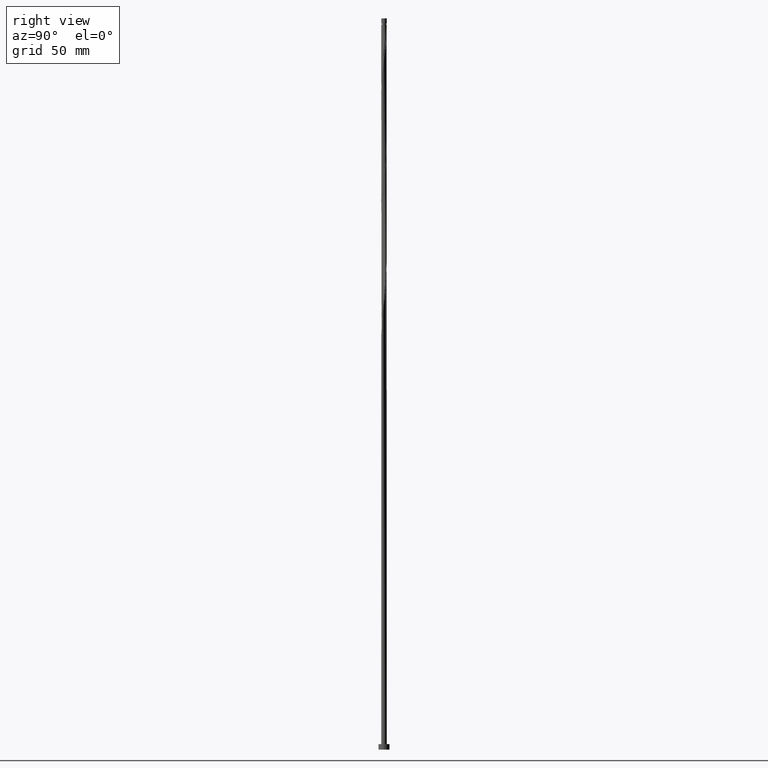
[diagram: clean part render]
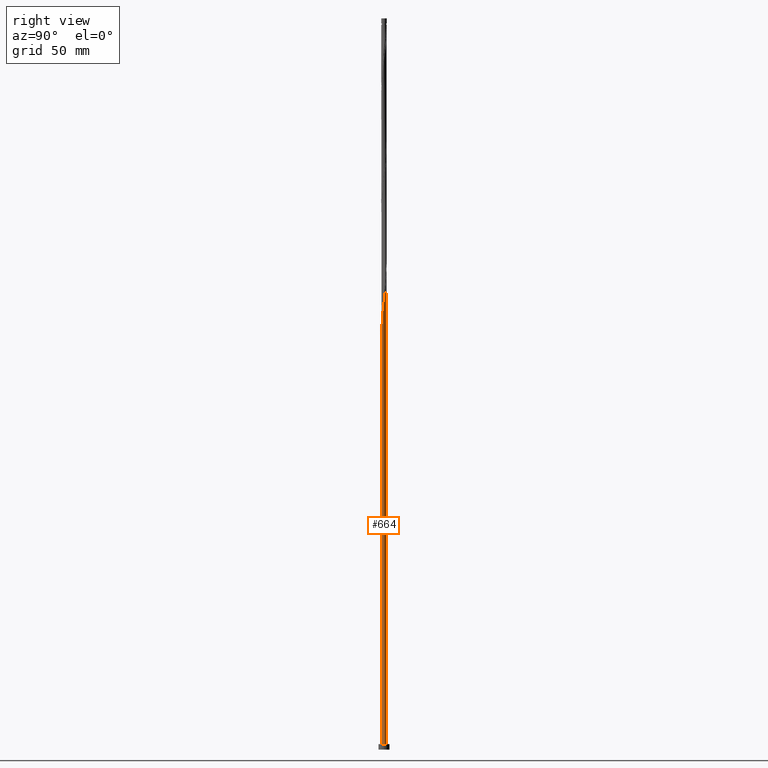
[diagram: same view with one face highlighted and labeled with its STEP entity id]
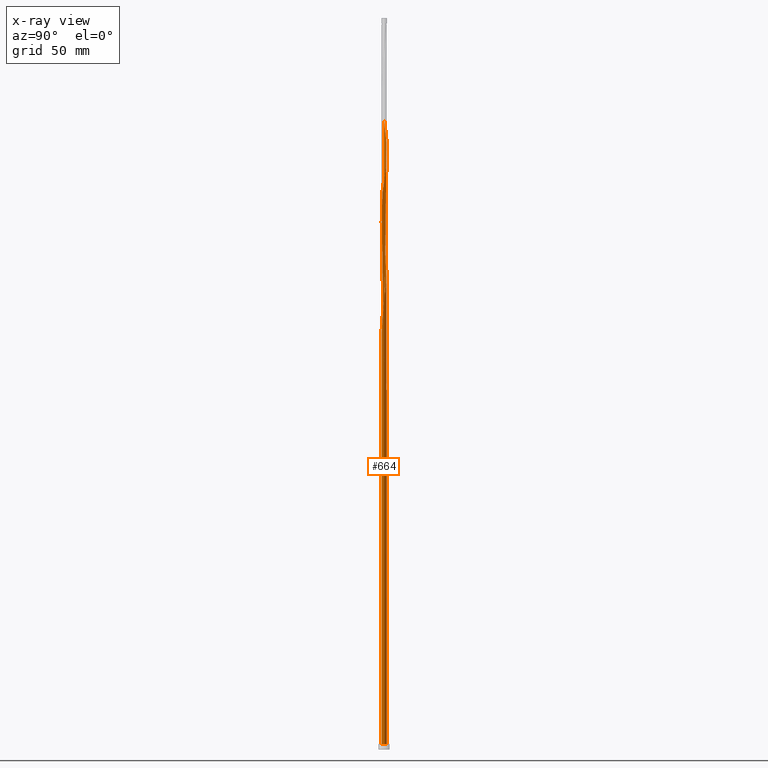
[diagram: x-ray of the same camera — body ghosted, the highlighted face saturated]
A machine part, right view. The second image highlights one B-rep face of the part: STEP entity #664.
The next image is the same camera in x-ray: the body ghosted, the highlighted face saturated — about 0% of this face is hidden behind the body in this view.
In plain terms, the highlighted cylindrical surface (bore or boss wall) has radius 1.5 mm, axis along (-0, -0, -1).
Its self-contained STEP definition (entity closure, byte-faithful):
#6 = VERTEX_POINT ( 'NONE', #1360 ) ;
#11 = CARTESIAN_POINT ( 'NONE',  ( -0.8705927413954919203, 1.221502467713221352, 201.0035197228416735 ) ) ;
#18 = CARTESIAN_POINT ( 'NONE',  ( -1.472387068173886648, 0.3270043533098237476, 342.1146308339528446 ) ) ;
#19 = CARTESIAN_POINT ( 'NONE',  ( -0.5976035578119458513, 1.375816116961315450, 198.7812975006194449 ) ) ;
#21 = CARTESIAN_POINT ( 'NONE',  ( -1.500000000000000444, 1.569583619169727147E-16, 215.3511851885854753 ) ) ;
#34 = CARTESIAN_POINT ( 'NONE',  ( -0.4791193468187435189, 1.430139915222718106, 202.1146308339528730 ) ) ;
#57 = CARTESIAN_POINT ( 'NONE',  ( -1.383394496761527925, 0.6008953252765254494, 211.0035197228417303 ) ) ;
#62 = CARTESIAN_POINT ( 'NONE',  ( -0.9989778241396267688, 1.129999483400999871, 268.7812975006195302 ) ) ;
#69 = CARTESIAN_POINT ( 'NONE',  ( -1.019387611201352239, -1.111622428587364375, 286.5590752783974153 ) ) ;
#70 = CARTESIAN_POINT ( 'NONE',  ( -1.493148538522774738, 0.1432041965422218843, 214.3368530561750731 ) ) ;
#74 = CARTESIAN_POINT ( 'NONE',  ( 1.430745833859950356, 0.4505178785491225080, 247.6701863895083875 ) ) ;
#85 = VERTEX_POINT ( 'NONE', #1034 ) ;
#93 = CARTESIAN_POINT ( 'NONE',  ( -1.490293487130534444, 0.1703681960235504111, 276.5590752783971880 ) ) ;
#125 = CARTESIAN_POINT ( 'NONE',  ( -0.3252129892473624717, -1.464321177756028103, 225.4479641672861590 ) ) ;
#142 = CARTESIAN_POINT ( 'NONE',  ( -1.490293487130534444, 0.1703681960235504111, 343.2257419450638736 ) ) ;
#162 = EDGE_CURVE ( 'NONE', #1152, #1869, #622, .T. ) ;
#165 = DIRECTION ( 'NONE',  ( -2.054325274013053632E-29, -4.625929269271493369E-14, -1.000000000000000000 ) ) ;
#174 = CARTESIAN_POINT ( 'NONE',  ( 0.000000000000000000, 0.000000000000000000, 3.000000000000000000 ) ) ;
#179 = CARTESIAN_POINT ( 'NONE',  ( -1.500000000000000222, 0.000000000000000000, 400.0000000000000000 ) ) ;
#184 = CARTESIAN_POINT ( 'NONE',  ( -1.305812670777220630, -0.7381417674387960037, 216.5590752783972732 ) ) ;
#188 = CARTESIAN_POINT ( 'NONE',  ( -0.01365681319226729265, 1.499937829196074990, 198.7812975006195586 ) ) ;
#192 = DIRECTION ( 'NONE',  ( -0.000000000000000000, -0.000000000000000000, -1.000000000000000000 ) ) ;
#199 = CARTESIAN_POINT ( 'NONE',  ( -1.228230844792911558, -0.8753882096010663361, 284.3368530561750163 ) ) ;
#200 = CARTESIAN_POINT ( 'NONE',  ( -1.123809227997129678, 0.9935053190942143564, 207.6701863895084443 ) ) ;
#204 = CARTESIAN_POINT ( 'NONE',  ( 0.2984962311319893646, -1.470000000000002416, 229.8924086117306445 ) ) ;
#213 = CARTESIAN_POINT ( 'NONE',  ( -0.4791193468187449067, -1.430139915222720326, 291.0035197228416450 ) ) ;
#214 = CARTESIAN_POINT ( 'NONE',  ( -0.1713066316759796204, 1.498502440289335436, 199.8924086117306445 ) ) ;
#217 = CARTESIAN_POINT ( 'NONE',  ( -0.7659922474358256128, -1.299273413288166035, 222.1146308339528446 ) ) ;
#226 = CARTESIAN_POINT ( 'NONE',  ( -1.105532844612588494, 1.013803299206905262, 269.8924086117305023 ) ) ;
#233 = CARTESIAN_POINT ( 'NONE',  ( 0.4791193468187449067, 1.430139915222720326, 257.6701863895083875 ) ) ;
#239 = CARTESIAN_POINT ( 'NONE',  ( 1.019387611201352906, 1.111622428587364153, 319.8924086117306160 ) ) ;
#244 = EDGE_CURVE ( 'NONE', #1657, #6, #940, .T. ) ;
#249 = CARTESIAN_POINT ( 'NONE',  ( -0.2984962311319891981, 1.470000000000002416, 329.8924086117306160 ) ) ;
#265 = CARTESIAN_POINT ( 'NONE',  ( -0.5976035578119458513, 1.375816116961315450, 332.1146308339528446 ) ) ;
#269 = CARTESIAN_POINT ( 'NONE',  ( -0.4791193468187449067, -1.430139915222720326, 224.3368530561750731 ) ) ;
#274 = ORIENTED_EDGE ( 'NONE', *, *, #774, .F. ) ;
#296 = CARTESIAN_POINT ( 'NONE',  ( -1.472387068173886648, 0.3270043533098237476, 208.7812975006195302 ) ) ;
#311 = DIRECTION ( 'NONE',  ( 0.000000000000000000, 0.000000000000000000, 1.000000000000000000 ) ) ;
#337 = CARTESIAN_POINT ( 'NONE',  ( 0.7659922474358266120, 1.299273413288165813, 322.1146308339529014 ) ) ;
#349 = CARTESIAN_POINT ( 'NONE',  ( 1.472387068173885982, -0.3270043533098247468, 308.7812975006194165 ) ) ;
#353 = CARTESIAN_POINT ( 'NONE',  ( 1.472387068173885982, -0.3270043533098247468, 242.1146308339528161 ) ) ;
#359 = VECTOR ( 'NONE', #1533, 1000.000000000000000 ) ;
#362 = CARTESIAN_POINT ( 'NONE',  ( -0.7659922474358256128, -1.299273413288166035, 288.7812975006195302 ) ) ;
#366 = CARTESIAN_POINT ( 'NONE',  ( -0.1439930052914436820, 1.501373218102816764, 262.1146308339527877 ) ) ;
#372 = CARTESIAN_POINT ( 'NONE',  ( 1.212087865085549776, -0.8976071150128118736, 304.3368530561750731 ) ) ;
#375 = CARTESIAN_POINT ( 'NONE',  ( -1.019387611201352239, -1.111622428587364375, 219.8924086117306729 ) ) ;
#381 = CARTESIAN_POINT ( 'NONE',  ( 1.493148538522776958, 0.1432041965422204133, 312.1146308339527877 ) ) ;
#422 = CARTESIAN_POINT ( 'NONE',  ( 0.01365681319226837859, 1.499937829196076766, 327.6701863895085012 ) ) ;
#444 = CARTESIAN_POINT ( 'NONE',  ( -1.500000000000002220, -4.559266703302508033E-16, 344.4336320348758136 ) ) ;
#449 = CARTESIAN_POINT ( 'NONE',  ( -1.500000000000002665, 5.157203320129068548E-16, 211.1002987015424424 ) ) ;
#456 = CARTESIAN_POINT ( 'NONE',  ( -1.500000000000001998, -0.07176599893013092812, 211.6088472271065086 ) ) ;
#465 = CARTESIAN_POINT ( 'NONE',  ( -1.292155857584952550, 0.7617960617572806514, 205.4479641672861305 ) ) ;
#476 = CARTESIAN_POINT ( 'NONE',  ( -0.01365681319226816695, -1.499937829196076766, 294.3368530561750731 ) ) ;
#477 = CARTESIAN_POINT ( 'NONE',  ( 0.2984962311319896422, 1.469999999999999529, 196.5590752783972732 ) ) ;
#487 = CARTESIAN_POINT ( 'NONE',  ( 0.9989778241396266578, -1.129999483401000093, 302.1146308339529014 ) ) ;
#502 = CARTESIAN_POINT ( 'NONE',  ( 1.490293487130534444, -0.1703681960235505499, 243.2257419450639020 ) ) ;
#508 = CARTESIAN_POINT ( 'NONE',  ( 1.508199906087182685, -0.01373203873727797675, 311.0035197228417019 ) ) ;
#512 = CARTESIAN_POINT ( 'NONE',  ( 0.4529994569725335207, -1.438626781897188067, 231.0035197228417019 ) ) ;
#520 = CARTESIAN_POINT ( 'NONE',  ( 1.383394496761530146, 0.6008953252765250053, 315.4479641672861021 ) ) ;
#521 = ORIENTED_EDGE ( 'NONE', *, *, #893, .F. ) ;
#538 = CIRCLE ( 'NONE', #1619, 1.500000000000000222 ) ;
#549 = CARTESIAN_POINT ( 'NONE',  ( -0.7422076586513572938, 1.313005452025443720, 266.5590752783973016 ) ) ;
#558 = CARTESIAN_POINT ( 'NONE',  ( -1.372223850084356211, 0.6259850085017497623, 339.8924086117307297 ) ) ;
#561 = CARTESIAN_POINT ( 'NONE',  ( 1.478097170958371676, 0.3001404318217202327, 246.5590752783972732 ) ) ;
#590 = CARTESIAN_POINT ( 'NONE',  ( -1.105532844612588494, 1.013803299206905262, 203.2257419450639304 ) ) ;
#600 = CARTESIAN_POINT ( 'NONE',  ( -1.500000000000000666, 0.07176599893012375331, 214.8426366630214375 ) ) ;
#605 = CARTESIAN_POINT ( 'NONE',  ( -0.7422076586513572938, 1.313005452025443720, 199.8924086117306160 ) ) ;
#622 =( BOUNDED_CURVE ( )  B_SPLINE_CURVE ( 2, ( #1465, #727, #19, #605, #11, #1041, #590, #879, #465, #899, #758, #296, #1626, #1192, #867 ),
 .UNSPECIFIED., .F., .T. ) 
 B_SPLINE_CURVE_WITH_KNOTS ( ( 3, 2, 2, 2, 2, 2, 2, 3 ),
 ( 0.000000000000000000, 0.008333333333333303727, 0.01666666666666671848, 0.02500000000000002220, 0.03333333333333332593, 0.04166666666666662966, 0.05000000000000004441, 0.05452860127731171125 ),
 .UNSPECIFIED. ) 
 CURVE ( )  GEOMETRIC_REPRESENTATION_ITEM ( )  RATIONAL_B_SPLINE_CURVE ( ( 0.9090909090910140877, 0.9041108139712620284, 0.9090909090910140877, 0.9041108139712620284, 0.9090909090910140877, 0.9041108139712620284, 0.9090909090910140877, 0.9041108139712620284, 0.9090909090910140877, 0.9041108139712620284, 0.9090909090910140877, 0.9041108139712620284, 0.9090909090910140877, 0.9063845652765609717, 0.9066196499553023092 ) ) 
 REPRESENTATION_ITEM ( '' )  );
#624 = CARTESIAN_POINT ( 'NONE',  ( -1.019387611201350907, 1.111622428587362821, 206.5590752783972732 ) ) ;
#628 = CARTESIAN_POINT ( 'NONE',  ( 0.000000000000000000, 0.000000000000000000, 400.0000000000000000 ) ) ;
#638 = CARTESIAN_POINT ( 'NONE',  ( -0.2984962311319891981, 1.470000000000002416, 196.5590752783972732 ) ) ;
#642 = CARTESIAN_POINT ( 'NONE',  ( -1.292155857584952550, 0.7617960617572806514, 272.1146308339527877 ) ) ;
#649 = CARTESIAN_POINT ( 'NONE',  ( 1.500000000000000222, 0.000000000000000000, 3.000000000000000000 ) ) ;
#650 = CARTESIAN_POINT ( 'NONE',  ( -0.3252129892473624717, -1.464321177756028103, 292.1146308339527309 ) ) ;
#655 = CARTESIAN_POINT ( 'NONE',  ( -1.123809227997131899, -0.9935053190942150225, 218.7812975006195018 ) ) ;
#660 = CARTESIAN_POINT ( 'NONE',  ( -1.493148538522776958, -0.1432041965422212737, 278.7812975006194733 ) ) ;
#664 = ADVANCED_FACE ( 'NONE', ( #1073 ), #1181, .T. ) ;
#673 = CARTESIAN_POINT ( 'NONE',  ( 1.123809227997132343, 0.9935053190942143564, 252.1146308339528446 ) ) ;
#698 = EDGE_CURVE ( 'NONE', #6, #1657, #538, .T. ) ;
#727 = CARTESIAN_POINT ( 'NONE',  ( -0.4529994569725342424, 1.438626781897187623, 197.6701863895083875 ) ) ;
#756 = DIRECTION ( 'NONE',  ( 1.000000000000000000, 0.000000000000000000, 0.000000000000000000 ) ) ;
#758 = CARTESIAN_POINT ( 'NONE',  ( -1.422305459129121541, 0.4764946809057868382, 207.6701863895083875 ) ) ;
#763 = CARTESIAN_POINT ( 'NONE',  ( -1.228230844792911558, -0.8753882096010663361, 217.6701863895084443 ) ) ;
#774 = EDGE_CURVE ( 'NONE', #1869, #872, #1464, .T. ) ;
#780 = CARTESIAN_POINT ( 'NONE',  ( -1.123809227997131899, -0.9935053190942150225, 285.4479641672860453 ) ) ;
#786 = CARTESIAN_POINT ( 'NONE',  ( 1.105532844612588050, -1.013803299206905262, 236.5590752783972448 ) ) ;
#797 = CARTESIAN_POINT ( 'NONE',  ( 0.7422076586513570717, -1.313005452025443720, 233.2257419450640157 ) ) ;
#808 = CARTESIAN_POINT ( 'NONE',  ( -1.422305459129121541, 0.4764946809057868382, 274.3368530561750731 ) ) ;
#817 = CARTESIAN_POINT ( 'NONE',  ( 0.1713066316759805641, 1.498502440289337212, 259.8924086117305592 ) ) ;
#867 = CARTESIAN_POINT ( 'NONE',  ( -1.500000000000002665, 5.157203320129068548E-16, 211.1002987015424424 ) ) ;
#872 = VERTEX_POINT ( 'NONE', #444 ) ;
#879 = CARTESIAN_POINT ( 'NONE',  ( -1.212087865085549998, 0.8976071150128117626, 204.3368530561750163 ) ) ;
#886 = CARTESIAN_POINT ( 'NONE',  ( -1.500000000000002887, 0.08546060616964404333, 343.8280407254912348 ) ) ;
#888 = CARTESIAN_POINT ( 'NONE',  ( 0.000000000000000000, 0.000000000000000000, 196.5590752783973301 ) ) ;
#893 = EDGE_CURVE ( 'NONE', #872, #1142, #901, .T. ) ;
#899 = CARTESIAN_POINT ( 'NONE',  ( -1.372223850084356211, 0.6259850085017497623, 206.5590752783972732 ) ) ;
#901 = LINE ( 'NONE', #1488, #1035 ) ;
#924 = CARTESIAN_POINT ( 'NONE',  ( -1.305812670777220630, -0.7381417674387960037, 283.2257419450639873 ) ) ;
#926 = ORIENTED_EDGE ( 'NONE', *, *, #1141, .F. ) ;
#929 = CARTESIAN_POINT ( 'NONE',  ( 0.01365681319226837859, 1.499937829196076766, 261.0035197228417587 ) ) ;
#937 = CARTESIAN_POINT ( 'NONE',  ( -1.305812670777218187, 0.7381417674387954486, 209.8924086117306160 ) ) ;
#940 = CIRCLE ( 'NONE', #970, 1.500000000000000222 ) ;
#941 = CARTESIAN_POINT ( 'NONE',  ( 1.493148538522776958, 0.1432041965422204133, 245.4479641672861874 ) ) ;
#951 = CARTESIAN_POINT ( 'NONE',  ( 0.5976035578119451852, -1.375816116961315450, 232.1146308339528446 ) ) ;
#956 = CARTESIAN_POINT ( 'NONE',  ( 1.422305459129121541, -0.4764946809057872268, 307.6701863895083875 ) ) ;
#959 = CARTESIAN_POINT ( 'NONE',  ( -0.01365681319226816695, -1.499937829196076766, 227.6701863895084159 ) ) ;
#965 = CARTESIAN_POINT ( 'NONE',  ( -1.478097170958371676, -0.3001404318217203993, 279.8924086117306160 ) ) ;
#970 = AXIS2_PLACEMENT_3D ( 'NONE', #1598, #311, #1316 ) ;
#991 = CARTESIAN_POINT ( 'NONE',  ( -1.292155857584952550, 0.7617960617572806514, 338.7812975006195302 ) ) ;
#1023 = DIRECTION ( 'NONE',  ( -0.000000000000000000, -0.000000000000000000, -1.000000000000000000 ) ) ;
#1031 = CARTESIAN_POINT ( 'NONE',  ( -1.422305459129121541, 0.4764946809057868382, 341.0035197228415882 ) ) ;
#1034 = CARTESIAN_POINT ( 'NONE',  ( 0.2984962311319896422, 1.469999999999999529, 196.5590752783972732 ) ) ;
#1035 = VECTOR ( 'NONE', #1023, 1000.000000000000000 ) ;
#1041 = CARTESIAN_POINT ( 'NONE',  ( -0.9989778241396267688, 1.129999483400999871, 202.1146308339528446 ) ) ;
#1052 = CARTESIAN_POINT ( 'NONE',  ( -1.383394496761529924, -0.6008953252765258934, 215.4479641672861874 ) ) ;
#1066 = CARTESIAN_POINT ( 'NONE',  ( 0.2984962311319893646, -1.470000000000002416, 296.5590752783971880 ) ) ;
#1068 = CARTESIAN_POINT ( 'NONE',  ( -1.500000000000000444, 1.569583619169727147E-16, 215.3511851885854753 ) ) ;
#1073 = FACE_OUTER_BOUND ( 'NONE', #1094, .T. ) ;
#1080 = CARTESIAN_POINT ( 'NONE',  ( 1.105532844612588050, -1.013803299206905262, 303.2257419450639304 ) ) ;
#1085 = CARTESIAN_POINT ( 'NONE',  ( 1.508199906087182685, -0.01373203873727797675, 244.3368530561750731 ) ) ;
#1091 = CARTESIAN_POINT ( 'NONE',  ( -0.8926899293185894813, -1.205447920937764650, 287.6701863895083875 ) ) ;
#1094 = EDGE_LOOP ( 'NONE', ( #521, #274, #1212, #1510, #1604, #1749, #1729, #1822, #926 ) ) ;
#1096 = CARTESIAN_POINT ( 'NONE',  ( 1.019387611201352906, 1.111622428587364153, 253.2257419450639873 ) ) ;
#1106 = CARTESIAN_POINT ( 'NONE',  ( 0.8705927413954913652, -1.221502467713221796, 234.3368530561750731 ) ) ;
#1112 = CARTESIAN_POINT ( 'NONE',  ( 1.305812670777220630, 0.7381417674387958927, 316.5590752783972448 ) ) ;
#1120 = EDGE_CURVE ( 'NONE', #1152, #85, #1455, .T. ) ;
#1135 = CARTESIAN_POINT ( 'NONE',  ( -0.7422076586513572938, 1.313005452025443720, 333.2257419450639873 ) ) ;
#1137 = CARTESIAN_POINT ( 'NONE',  ( 1.292155857584952550, -0.7617960617572808735, 238.7812975006194733 ) ) ;
#1141 = EDGE_CURVE ( 'NONE', #1142, #85, #1674, .T. ) ;
#1142 = VERTEX_POINT ( 'NONE', #1068 ) ;
#1148 = CARTESIAN_POINT ( 'NONE',  ( 0.8926899293185895923, 1.205447920937764428, 254.3368530561751015 ) ) ;
#1152 = VERTEX_POINT ( 'NONE', #638 ) ;
#1157 = CARTESIAN_POINT ( 'NONE',  ( 0.3252129892473633599, 1.464321177756027881, 325.4479641672861590 ) ) ;
#1181 = CYLINDRICAL_SURFACE ( 'NONE', #1247, 1.500000000000000222 ) ;
#1192 = CARTESIAN_POINT ( 'NONE',  ( -1.500000000000002887, 0.08546060616964247514, 210.4947073921579204 ) ) ;
#1197 = DIRECTION ( 'NONE',  ( -1.000000000000000000, 0.000000000000000000, 0.000000000000000000 ) ) ;
#1201 = CARTESIAN_POINT ( 'NONE',  ( -1.430745833859948357, 0.4505178785491231741, 212.1146308339529014 ) ) ;
#1210 = CARTESIAN_POINT ( 'NONE',  ( 0.1439930052914445702, -1.501373218102816764, 295.4479641672862726 ) ) ;
#1211 = CARTESIAN_POINT ( 'NONE',  ( 0.1439930052914449587, 1.501373218102814544, 197.6701863895083875 ) ) ;
#1212 = ORIENTED_EDGE ( 'NONE', *, *, #1434, .T. ) ;
#1225 = CARTESIAN_POINT ( 'NONE',  ( -1.372223850084356211, 0.6259850085017497623, 273.2257419450639304 ) ) ;
#1232 = CARTESIAN_POINT ( 'NONE',  ( -0.8926899293185874829, 1.205447920937763984, 205.4479641672862158 ) ) ;
#1236 = CARTESIAN_POINT ( 'NONE',  ( 1.422305459129121541, -0.4764946809057872268, 241.0035197228417587 ) ) ;
#1242 = CARTESIAN_POINT ( 'NONE',  ( -1.430745833859950356, -0.4505178785491230076, 281.0035197228417587 ) ) ;
#1247 = AXIS2_PLACEMENT_3D ( 'NONE', #628, #192, #1197 ) ;
#1248 = CARTESIAN_POINT ( 'NONE',  ( 1.372223850084355767, -0.6259850085017499843, 239.8924086117306160 ) ) ;
#1254 = CARTESIAN_POINT ( 'NONE',  ( 1.430745833859950356, 0.4505178785491225080, 314.3368530561751300 ) ) ;
#1257 = CARTESIAN_POINT ( 'NONE',  ( 0.1439930052914445702, -1.501373218102816764, 228.7812975006195302 ) ) ;
#1263 = CARTESIAN_POINT ( 'NONE',  ( -1.212087865085549998, 0.8976071150128117626, 337.6701863895083875 ) ) ;
#1272 = CARTESIAN_POINT ( 'NONE',  ( -0.4529994569725342424, 1.438626781897187623, 331.0035197228418156 ) ) ;
#1293 = CARTESIAN_POINT ( 'NONE',  ( 0.1713066316759805641, 1.498502440289337212, 326.5590752783972448 ) ) ;
#1295 = CARTESIAN_POINT ( 'NONE',  ( 1.212087865085549776, -0.8976071150128118736, 237.6701863895083875 ) ) ;
#1303 = CARTESIAN_POINT ( 'NONE',  ( 0.4791193468187449067, 1.430139915222720326, 324.3368530561751300 ) ) ;
#1316 = DIRECTION ( 'NONE',  ( 1.000000000000000000, 0.000000000000000000, 0.000000000000000000 ) ) ;
#1334 = DIRECTION ( 'NONE',  ( 0.000000000000000000, 1.000000000000000000, -5.551115123125782071E-14 ) ) ;
#1346 = CARTESIAN_POINT ( 'NONE',  ( -1.478097170958371676, -0.3001404318217203993, 213.2257419450639588 ) ) ;
#1359 = CARTESIAN_POINT ( 'NONE',  ( -0.3252129892473613615, 1.464321177756026549, 201.0035197228417303 ) ) ;
#1360 = CARTESIAN_POINT ( 'NONE',  ( -1.500000000000000222, 0.000000000000000000, 3.000000000000000000 ) ) ;
#1368 = AXIS2_PLACEMENT_3D ( 'NONE', #888, #165, #1334 ) ;
#1376 = CARTESIAN_POINT ( 'NONE',  ( 1.305812670777220630, 0.7381417674387958927, 249.8924086117305876 ) ) ;
#1383 = CARTESIAN_POINT ( 'NONE',  ( 0.5976035578119451852, -1.375816116961315450, 298.7812975006194165 ) ) ;
#1384 = CARTESIAN_POINT ( 'NONE',  ( -0.6225557971272838165, 1.364706664255441515, 203.2257419450639873 ) ) ;
#1387 = CARTESIAN_POINT ( 'NONE',  ( 0.9989778241396266578, -1.129999483401000093, 235.4479641672861305 ) ) ;
#1397 = CARTESIAN_POINT ( 'NONE',  ( -0.8705927413954919203, 1.221502467713221352, 267.6701863895083875 ) ) ;
#1406 = CARTESIAN_POINT ( 'NONE',  ( -0.2984962311319891981, 1.470000000000002416, 263.2257419450639873 ) ) ;
#1433 = CARTESIAN_POINT ( 'NONE',  ( -0.1439930052914436820, 1.501373218102816764, 328.7812975006195302 ) ) ;
#1434 = EDGE_CURVE ( 'NONE', #1869, #6, #1644, .T. ) ;
#1455 = CIRCLE ( 'NONE', #1368, 1.500000000000000222 ) ;
#1464 =( BOUNDED_CURVE ( )  B_SPLINE_CURVE ( 2, ( #449, #456, #1630, #1346, #1782, #1052, #184, #763, #655, #375, #1824, #217, #1735, #269, #125, #1525, #959, #1257, #204, #512, #951, #797, #1106, #1387, #786, #1295, #1137, #1248, #1236, #353, #502, #1085, #941, #561, #74, #1672, #1376, #1725, #673, #1096, #1148, #1547, #1876, #233, #1683, #817, #929, #366, #1406, #1513, #1536, #549, #1397, #62, #226, #1834, #642, #1225, #808, #1693, #93, #1865, #660, #965, #1242, #1690, #924, #199, #780, #69, #1091, #362, #1795, #213, #650, #1508, #476, #1210, #1066, #1806, #1383, #1819, #1840, #487, #1080, #372, #1830, #1667, #956, #349, #1531, #508, #381, #1543, #1254, #520, #1112, #1700, #1552, #239, #1654, #337, #1560, #1303, #1157, #1293, #422, #1433, #249, #1272, #265, #1135, #1873, #1847, #1855, #1263, #991, #558, #1031, #18, #142, #886, #1753 ),
 .UNSPECIFIED., .F., .T. ) 
 B_SPLINE_CURVE_WITH_KNOTS ( ( 3, 2, 2, 2, 2, 2, 2, 2, 2, 2, 2, 2, 2, 2, 2, 2, 2, 2, 2, 2, 2, 2, 2, 2, 2, 2, 2, 2, 2, 2, 2, 2, 2, 2, 2, 2, 2, 2, 2, 2, 2, 2, 2, 2, 2, 2, 2, 2, 2, 2, 2, 2, 2, 2, 2, 2, 2, 2, 2, 2, 2, 3 ),
 ( 0.05452860127731171125, 0.05833333333333334814, 0.06666666666666665186, 0.07499999999999995559, 0.08333333333333337034, 0.09166666666666667407, 0.09999999999999997780, 0.1083333333333332815, 0.1166666666666666963, 0.1250000000000000000, 0.1333333333333333037, 0.1416666666666667185, 0.1500000000000000222, 0.1583333333333333259, 0.1666666666666666297, 0.1750000000000000444, 0.1833333333333333481, 0.1916666666666666519, 0.1999999999999999556, 0.2083333333333333703, 0.2166666666666666741, 0.2249999999999999778, 0.2333333333333332815, 0.2416666666666666963, 0.2500000000000000000, 0.2583333333333333037, 0.2666666666666667185, 0.2750000000000000222, 0.2833333333333333259, 0.2916666666666666297, 0.3000000000000000444, 0.3083333333333333481, 0.3166666666666666519, 0.3249999999999999556, 0.3333333333333333703, 0.3416666666666666741, 0.3499999999999999778, 0.3583333333333332815, 0.3666666666666666963, 0.3750000000000000000, 0.3833333333333333037, 0.3916666666666667185, 0.4000000000000000222, 0.4083333333333333259, 0.4166666666666666297, 0.4250000000000000444, 0.4333333333333333481, 0.4416666666666666519, 0.4499999999999999556, 0.4583333333333333703, 0.4666666666666666741, 0.4749999999999999778, 0.4833333333333332815, 0.4916666666666666963, 0.5000000000000000000, 0.5083333333333333037, 0.5166666666666666075, 0.5250000000000000222, 0.5333333333333333259, 0.5416666666666667407, 0.5500000000000000444, 0.5545286012773116280 ),
 .UNSPECIFIED. ) 
 CURVE ( )  GEOMETRIC_REPRESENTATION_ITEM ( )  RATIONAL_B_SPLINE_CURVE ( ( 0.9066196499553023092, 0.9068171577857151444, 0.9090909090910140877, 0.9041108139712620284, 0.9090909090910140877, 0.9041108139712620284, 0.9090909090910140877, 0.9041108139712620284, 0.9090909090910140877, 0.9041108139712620284, 0.9090909090910140877, 0.9041108139712620284, 0.9090909090910140877, 0.9041108139712620284, 0.9090909090910140877, 0.9041108139712620284, 0.9090909090910140877, 0.9041108139712620284, 0.9090909090910140877, 0.9041108139712620284, 0.9090909090910140877, 0.9041108139712620284, 0.9090909090910140877, 0.9041108139712620284, 0.9090909090910140877, 0.9041108139712620284, 0.9090909090910140877, 0.9041108139712620284, 0.9090909090910140877, 0.9041108139712620284, 0.9090909090910140877, 0.9041108139712620284, 0.9090909090910140877, 0.9041108139712620284, 0.9090909090910140877, 0.9041108139712620284, 0.9090909090910140877, 0.9041108139712620284, 0.9090909090910140877, 0.9041108139712620284, 0.9090909090910140877, 0.9041108139712620284, 0.9090909090910140877, 0.9041108139712620284, 0.9090909090910140877, 0.9041108139712620284, 0.9090909090910140877, 0.9041108139712620284, 0.9090909090910140877, 0.9041108139712620284, 0.9090909090910140877, 0.9041108139712620284, 0.9090909090910140877, 0.9041108139712620284, 0.9090909090910140877, 0.9041108139712620284, 0.9090909090910140877, 0.9041108139712620284, 0.9090909090910140877, 0.9041108139712620284, 0.9090909090910140877, 0.9041108139712620284, 0.9090909090910140877, 0.9041108139712620284, 0.9090909090910140877, 0.9041108139712620284, 0.9090909090910140877, 0.9041108139712620284, 0.9090909090910140877, 0.9041108139712620284, 0.9090909090910140877, 0.9041108139712620284, 0.9090909090910140877, 0.9041108139712620284, 0.9090909090910140877, 0.9041108139712620284, 0.9090909090910140877, 0.9041108139712620284, 0.9090909090910140877, 0.9041108139712620284, 0.9090909090910140877, 0.9041108139712620284, 0.9090909090910140877, 0.9041108139712620284, 0.9090909090910140877, 0.9041108139712620284, 0.9090909090910140877, 0.9041108139712620284, 0.9090909090910140877, 0.9041108139712620284, 0.9090909090910140877, 0.9041108139712620284, 0.9090909090910140877, 0.9041108139712620284, 0.9090909090910140877, 0.9041108139712620284, 0.9090909090910140877, 0.9041108139712620284, 0.9090909090910140877, 0.9041108139712620284, 0.9090909090910140877, 0.9041108139712620284, 0.9090909090910140877, 0.9041108139712620284, 0.9090909090910140877, 0.9041108139712620284, 0.9090909090910140877, 0.9041108139712620284, 0.9090909090910140877, 0.9041108139712620284, 0.9090909090910140877, 0.9041108139712620284, 0.9090909090910140877, 0.9041108139712620284, 0.9090909090910140877, 0.9041108139712620284, 0.9090909090910140877, 0.9041108139712620284, 0.9090909090910140877, 0.9041108139712620284, 0.9090909090910140877, 0.9063845652765609717, 0.9066196499553023092 ) ) 
 REPRESENTATION_ITEM ( '' )  );
#1465 = CARTESIAN_POINT ( 'NONE',  ( -0.2984962311319891981, 1.470000000000002416, 196.5590752783972448 ) ) ;
#1471 = DIRECTION ( 'NONE',  ( 0.000000000000000000, 0.000000000000000000, 1.000000000000000000 ) ) ;
#1488 = CARTESIAN_POINT ( 'NONE',  ( -1.500000000000000222, 0.000000000000000000, 400.0000000000000000 ) ) ;
#1489 = CARTESIAN_POINT ( 'NONE',  ( -0.7659922474358242805, 1.299273413288165147, 204.3368530561751015 ) ) ;
#1508 = CARTESIAN_POINT ( 'NONE',  ( -0.1713066316759801477, -1.498502440289337212, 293.2257419450639873 ) ) ;
#1510 = ORIENTED_EDGE ( 'NONE', *, *, #698, .T. ) ;
#1513 = CARTESIAN_POINT ( 'NONE',  ( -0.4529994569725342424, 1.438626781897187623, 264.3368530561751300 ) ) ;
#1525 = CARTESIAN_POINT ( 'NONE',  ( -0.1713066316759801477, -1.498502440289337212, 226.5590752783972732 ) ) ;
#1531 = CARTESIAN_POINT ( 'NONE',  ( 1.490293487130534444, -0.1703681960235505499, 309.8924086117306729 ) ) ;
#1533 = DIRECTION ( 'NONE',  ( -0.000000000000000000, -0.000000000000000000, -1.000000000000000000 ) ) ;
#1536 = CARTESIAN_POINT ( 'NONE',  ( -0.5976035578119458513, 1.375816116961315450, 265.4479641672861021 ) ) ;
#1543 = CARTESIAN_POINT ( 'NONE',  ( 1.478097170958371676, 0.3001404318217202327, 313.2257419450640441 ) ) ;
#1547 = CARTESIAN_POINT ( 'NONE',  ( 0.7659922474358266120, 1.299273413288165813, 255.4479641672862158 ) ) ;
#1552 = CARTESIAN_POINT ( 'NONE',  ( 1.123809227997132343, 0.9935053190942143564, 318.7812975006195302 ) ) ;
#1560 = CARTESIAN_POINT ( 'NONE',  ( 0.6225557971272850377, 1.364706664255442847, 323.2257419450638167 ) ) ;
#1598 = CARTESIAN_POINT ( 'NONE',  ( 0.000000000000000000, 0.000000000000000000, 3.000000000000000000 ) ) ;
#1604 = ORIENTED_EDGE ( 'NONE', *, *, #244, .T. ) ;
#1619 = AXIS2_PLACEMENT_3D ( 'NONE', #174, #1471, #756 ) ;
#1626 = CARTESIAN_POINT ( 'NONE',  ( -1.490293487130534444, 0.1703681960235504111, 209.8924086117306160 ) ) ;
#1630 = CARTESIAN_POINT ( 'NONE',  ( -1.493148538522776958, -0.1432041965422212737, 212.1146308339528161 ) ) ;
#1644 = LINE ( 'NONE', #179, #359 ) ;
#1654 = CARTESIAN_POINT ( 'NONE',  ( 0.8926899293185895923, 1.205447920937764428, 321.0035197228418156 ) ) ;
#1657 = VERTEX_POINT ( 'NONE', #649 ) ;
#1667 = CARTESIAN_POINT ( 'NONE',  ( 1.372223850084355767, -0.6259850085017499843, 306.5590752783973016 ) ) ;
#1672 = CARTESIAN_POINT ( 'NONE',  ( 1.383394496761530146, 0.6008953252765250053, 248.7812975006195302 ) ) ;
#1674 =( BOUNDED_CURVE ( )  B_SPLINE_CURVE ( 2, ( #21, #600, #70, #1820, #1201, #57, #937, #1779, #200, #624, #1232, #1489, #1384, #34, #1359, #214, #188, #1211, #477 ),
 .UNSPECIFIED., .F., .T. ) 
 B_SPLINE_CURVE_WITH_KNOTS ( ( 3, 2, 2, 2, 2, 2, 2, 2, 2, 3 ),
 ( 0.9295286012773112949, 0.9333333333333333481, 0.9416666666666666519, 0.9499999999999999556, 0.9583333333333333703, 0.9666666666666666741, 0.9749999999999999778, 0.9833333333333332815, 0.9916666666666666963, 1.000000000000000000 ),
 .UNSPECIFIED. ) 
 CURVE ( )  GEOMETRIC_REPRESENTATION_ITEM ( )  RATIONAL_B_SPLINE_CURVE ( ( 0.9066196499552959809, 0.9068171577857085941, 0.9090909090910077595, 0.9041108139712557001, 0.9090909090910077595, 0.9041108139712557001, 0.9090909090910077595, 0.9041108139712557001, 0.9090909090910077595, 0.9041108139712557001, 0.9090909090910077595, 0.9041108139712557001, 0.9090909090910077595, 0.9041108139712557001, 0.9090909090910077595, 0.9041108139712557001, 0.9090909090910077595, 0.9041108139712557001, 0.9090909090910077595 ) ) 
 REPRESENTATION_ITEM ( '' )  );
#1679 = CARTESIAN_POINT ( 'NONE',  ( -1.500000000000002665, 5.157203320129068548E-16, 211.1002987015424424 ) ) ;
#1683 = CARTESIAN_POINT ( 'NONE',  ( 0.3252129892473633599, 1.464321177756027881, 258.7812975006195302 ) ) ;
#1690 = CARTESIAN_POINT ( 'NONE',  ( -1.383394496761529924, -0.6008953252765258934, 282.1146308339528446 ) ) ;
#1693 = CARTESIAN_POINT ( 'NONE',  ( -1.472387068173886648, 0.3270043533098237476, 275.4479641672861590 ) ) ;
#1700 = CARTESIAN_POINT ( 'NONE',  ( 1.228230844792911780, 0.8753882096010657810, 317.6701863895083875 ) ) ;
#1725 = CARTESIAN_POINT ( 'NONE',  ( 1.228230844792911780, 0.8753882096010657810, 251.0035197228417303 ) ) ;
#1729 = ORIENTED_EDGE ( 'NONE', *, *, #162, .F. ) ;
#1735 = CARTESIAN_POINT ( 'NONE',  ( -0.6225557971272850377, -1.364706664255442847, 223.2257419450639873 ) ) ;
#1749 = ORIENTED_EDGE ( 'NONE', *, *, #1434, .F. ) ;
#1753 = CARTESIAN_POINT ( 'NONE',  ( -1.500000000000002220, -4.559266703302508033E-16, 344.4336320348758136 ) ) ;
#1779 = CARTESIAN_POINT ( 'NONE',  ( -1.228230844792909116, 0.8753882096010657810, 208.7812975006195586 ) ) ;
#1782 = CARTESIAN_POINT ( 'NONE',  ( -1.430745833859950356, -0.4505178785491230076, 214.3368530561750447 ) ) ;
#1795 = CARTESIAN_POINT ( 'NONE',  ( -0.6225557971272850377, -1.364706664255442847, 289.8924086117306160 ) ) ;
#1806 = CARTESIAN_POINT ( 'NONE',  ( 0.4529994569725335207, -1.438626781897188067, 297.6701863895082738 ) ) ;
#1819 = CARTESIAN_POINT ( 'NONE',  ( 0.7422076586513570717, -1.313005452025443720, 299.8924086117306160 ) ) ;
#1820 = CARTESIAN_POINT ( 'NONE',  ( -1.478097170958368789, 0.3001404318217203993, 213.2257419450639873 ) ) ;
#1822 = ORIENTED_EDGE ( 'NONE', *, *, #1120, .T. ) ;
#1824 = CARTESIAN_POINT ( 'NONE',  ( -0.8926899293185894813, -1.205447920937764650, 221.0035197228417303 ) ) ;
#1830 = CARTESIAN_POINT ( 'NONE',  ( 1.292155857584952550, -0.7617960617572808735, 305.4479641672860453 ) ) ;
#1834 = CARTESIAN_POINT ( 'NONE',  ( -1.212087865085549998, 0.8976071150128117626, 271.0035197228417587 ) ) ;
#1840 = CARTESIAN_POINT ( 'NONE',  ( 0.8705927413954913652, -1.221502467713221796, 301.0035197228417587 ) ) ;
#1847 = CARTESIAN_POINT ( 'NONE',  ( -0.9989778241396267688, 1.129999483400999871, 335.4479641672861021 ) ) ;
#1855 = CARTESIAN_POINT ( 'NONE',  ( -1.105532844612588494, 1.013803299206905262, 336.5590752783972448 ) ) ;
#1865 = CARTESIAN_POINT ( 'NONE',  ( -1.508199906087182685, 0.01373203873727749796, 277.6701863895083306 ) ) ;
#1869 = VERTEX_POINT ( 'NONE', #1679 ) ;
#1873 = CARTESIAN_POINT ( 'NONE',  ( -0.8705927413954919203, 1.221502467713221352, 334.3368530561749594 ) ) ;
#1876 = CARTESIAN_POINT ( 'NONE',  ( 0.6225557971272850377, 1.364706664255442847, 256.5590752783972448 ) ) ;